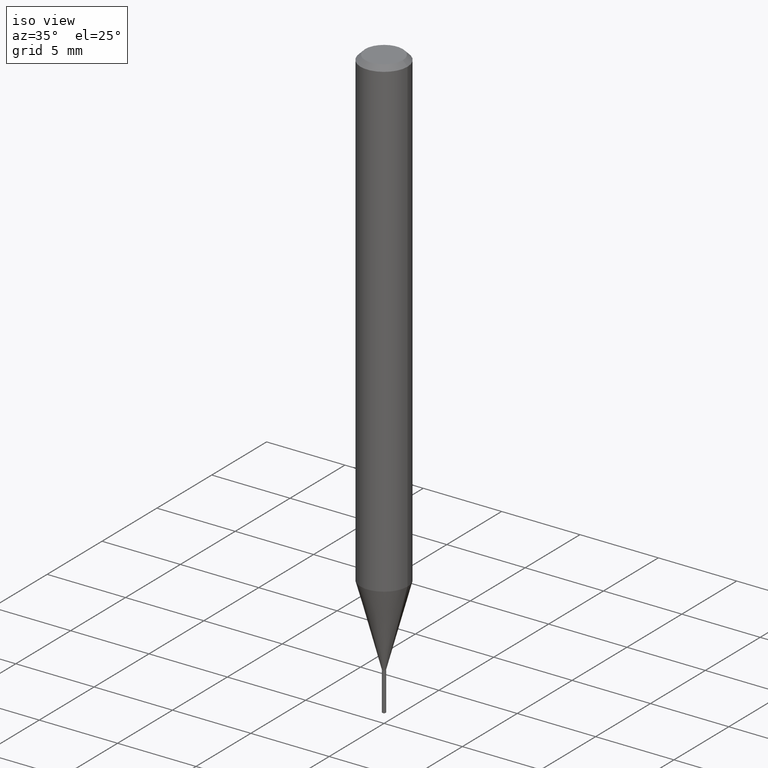
[diagram: clean part render]
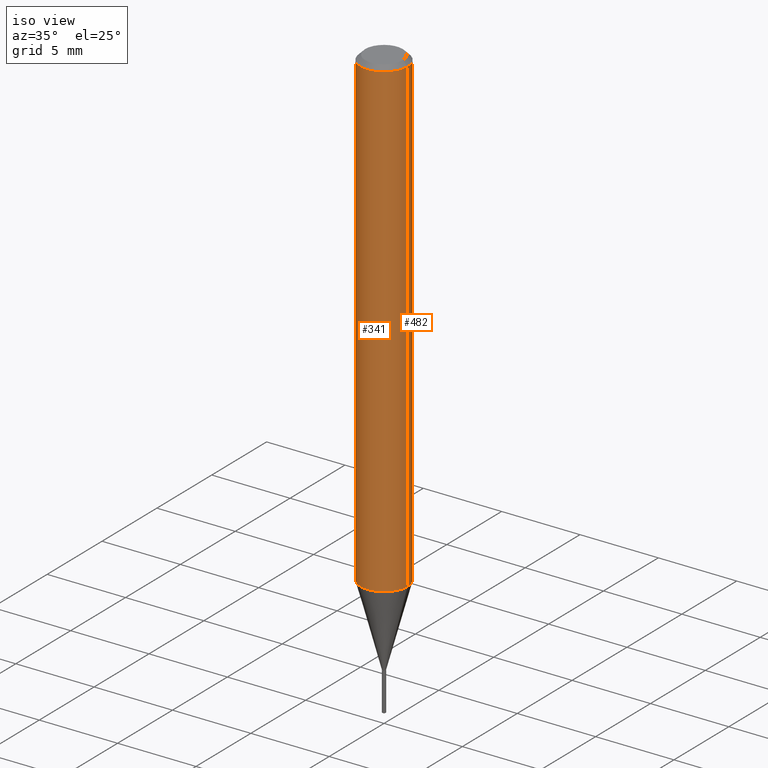
[diagram: same view with one multi-face feature highlighted, each face labeled with its STEP entity id]
A machine part, iso view. The highlighted faces form ONE feature: a constant-radius fillet chain: 2 tangent blend faces with common blend radius 1.4999 mm. The faces share edges in the B-rep.
Their STEP definitions:
[1] entity #482 (Cylinder):
#8 = ORIENTED_EDGE ( 'NONE', *, *, #33, .F. ) ;
#30 = DIRECTION ( 'NONE',  ( -2.445468806185136877E-29, 3.491481338843145188E-15, 1.000000000000000000 ) ) ;
#32 = EDGE_LOOP ( 'NONE', ( #108, #419, #8, #351 ) ) ;
#33 = EDGE_CURVE ( 'NONE', #458, #157, #185, .T. ) ;
#34 = CARTESIAN_POINT ( 'NONE',  ( 0.05905000000000006771, -4.123439461173745257E-16, 2.879382386107503723E-30 ) ) ;
#58 = CARTESIAN_POINT ( 'NONE',  ( 2.888098660104664204E-31, -4.123439461173780263E-17, -0.01181000000000007218 ) ) ;
#105 = LINE ( 'NONE', #376, #273 ) ;
#108 = ORIENTED_EDGE ( 'NONE', *, *, #276, .T. ) ;
#133 = EDGE_CURVE ( 'NONE', #247, #458, #246, .T. ) ;
#134 = AXIS2_PLACEMENT_3D ( 'NONE', #335, #367, #217 ) ;
#157 = VERTEX_POINT ( 'NONE', #411 ) ;
#170 = DIRECTION ( 'NONE',  ( 1.000000000000000000, -6.982962677686266711E-15, 4.876176775795936353E-29 ) ) ;
#184 = DIRECTION ( 'NONE',  ( -2.445468806185136877E-29, 3.491481338843145188E-15, 1.000000000000000000 ) ) ;
#185 = CIRCLE ( 'NONE', #280, 0.05904999999999999832 ) ;
#189 = FACE_OUTER_BOUND ( 'NONE', #32, .T. ) ;
#206 = CYLINDRICAL_SURFACE ( 'NONE', #363, 0.05905000000000006771 ) ;
#217 = DIRECTION ( 'NONE',  ( 1.000000000000000000, -6.982962677686272233E-15, 0.000000000000000000 ) ) ;
#219 = CARTESIAN_POINT ( 'NONE',  ( 0.05905000000000015098, -4.575086387139747161E-15, -1.192256820825982278 ) ) ;
#238 = EDGE_CURVE ( 'NONE', #388, #157, #105, .T. ) ;
#246 = LINE ( 'NONE', #34, #385 ) ;
#247 = VERTEX_POINT ( 'NONE', #219 ) ;
#248 = DIRECTION ( 'NONE',  ( -2.445468806185136597E-29, 3.491481338843145583E-15, 1.000000000000000000 ) ) ;
#254 = DIRECTION ( 'NONE',  ( -2.445468806185136597E-29, 3.491481338843145583E-15, 1.000000000000000000 ) ) ;
#262 = CARTESIAN_POINT ( 'NONE',  ( 0.05904999999999999832, -4.535783407291118600E-16, -0.01181000000000007218 ) ) ;
#273 = VECTOR ( 'NONE', #184, 39.37007874015748143 ) ;
#276 = EDGE_CURVE ( 'NONE', #247, #388, #287, .T. ) ;
#280 = AXIS2_PLACEMENT_3D ( 'NONE', #58, #254, #361 ) ;
#281 = CARTESIAN_POINT ( 'NONE',  ( 0.000000000000000000, 0.000000000000000000, 0.000000000000000000 ) ) ;
#287 = CIRCLE ( 'NONE', #134, 0.05905000000000014404 ) ;
#335 = CARTESIAN_POINT ( 'NONE',  ( 2.915626864291401219E-29, -4.162742441022373029E-15, -1.192256820825982278 ) ) ;
#346 = CARTESIAN_POINT ( 'NONE',  ( -0.05905000000000015098, -3.743166955556031959E-15, -1.192256820825982278 ) ) ;
#351 = ORIENTED_EDGE ( 'NONE', *, *, #133, .F. ) ;
#361 = DIRECTION ( 'NONE',  ( 1.000000000000000000, -6.982962677686266711E-15, 0.000000000000000000 ) ) ;
#363 = AXIS2_PLACEMENT_3D ( 'NONE', #281, #248, #170 ) ;
#367 = DIRECTION ( 'NONE',  ( -2.445468806185136597E-29, 3.491481338843145583E-15, 1.000000000000000000 ) ) ;
#376 = CARTESIAN_POINT ( 'NONE',  ( -0.05905000000000006771, 4.195754854663396409E-16, -2.904631170795525045E-30 ) ) ;
#385 = VECTOR ( 'NONE', #30, 39.37007874015748143 ) ;
#388 = VERTEX_POINT ( 'NONE', #346 ) ;
#411 = CARTESIAN_POINT ( 'NONE',  ( -0.05904999999999999832, -1.682412932350714703E-15, -0.01181000000000007218 ) ) ;
#419 = ORIENTED_EDGE ( 'NONE', *, *, #238, .T. ) ;
#458 = VERTEX_POINT ( 'NONE', #262 ) ;
#482 = ADVANCED_FACE ( 'NONE', ( #189 ), #206, .T. ) ;
[2] entity #341 (Cylinder):
#13 = ORIENTED_EDGE ( 'NONE', *, *, #133, .T. ) ;
#30 = DIRECTION ( 'NONE',  ( -2.445468806185136877E-29, 3.491481338843145188E-15, 1.000000000000000000 ) ) ;
#34 = CARTESIAN_POINT ( 'NONE',  ( 0.05905000000000006771, -4.123439461173745257E-16, 2.879382386107503723E-30 ) ) ;
#45 = DIRECTION ( 'NONE',  ( -2.445468806185136597E-29, 3.491481338843145583E-15, 1.000000000000000000 ) ) ;
#74 = AXIS2_PLACEMENT_3D ( 'NONE', #275, #45, #156 ) ;
#79 = FACE_OUTER_BOUND ( 'NONE', #316, .T. ) ;
#105 = LINE ( 'NONE', #376, #273 ) ;
#113 = DIRECTION ( 'NONE',  ( 1.000000000000000000, -6.982962677686266711E-15, 4.876176775795936353E-29 ) ) ;
#133 = EDGE_CURVE ( 'NONE', #247, #458, #246, .T. ) ;
#155 = EDGE_CURVE ( 'NONE', #157, #458, #344, .T. ) ;
#156 = DIRECTION ( 'NONE',  ( 1.000000000000000000, -6.982962677686272233E-15, 0.000000000000000000 ) ) ;
#157 = VERTEX_POINT ( 'NONE', #411 ) ;
#184 = DIRECTION ( 'NONE',  ( -2.445468806185136877E-29, 3.491481338843145188E-15, 1.000000000000000000 ) ) ;
#201 = AXIS2_PLACEMENT_3D ( 'NONE', #484, #477, #260 ) ;
#219 = CARTESIAN_POINT ( 'NONE',  ( 0.05905000000000015098, -4.575086387139747161E-15, -1.192256820825982278 ) ) ;
#238 = EDGE_CURVE ( 'NONE', #388, #157, #105, .T. ) ;
#246 = LINE ( 'NONE', #34, #385 ) ;
#247 = VERTEX_POINT ( 'NONE', #219 ) ;
#260 = DIRECTION ( 'NONE',  ( 1.000000000000000000, -6.982962677686266711E-15, 0.000000000000000000 ) ) ;
#262 = CARTESIAN_POINT ( 'NONE',  ( 0.05904999999999999832, -4.535783407291118600E-16, -0.01181000000000007218 ) ) ;
#268 = DIRECTION ( 'NONE',  ( -2.445468806185136597E-29, 3.491481338843145583E-15, 1.000000000000000000 ) ) ;
#273 = VECTOR ( 'NONE', #184, 39.37007874015748143 ) ;
#275 = CARTESIAN_POINT ( 'NONE',  ( 2.915626864291401219E-29, -4.162742441022373029E-15, -1.192256820825982278 ) ) ;
#309 = ORIENTED_EDGE ( 'NONE', *, *, #155, .F. ) ;
#316 = EDGE_LOOP ( 'NONE', ( #412, #364, #13, #309 ) ) ;
#332 = CIRCLE ( 'NONE', #74, 0.05905000000000014404 ) ;
#341 = ADVANCED_FACE ( 'NONE', ( #79 ), #384, .T. ) ;
#344 = CIRCLE ( 'NONE', #201, 0.05904999999999999832 ) ;
#346 = CARTESIAN_POINT ( 'NONE',  ( -0.05905000000000015098, -3.743166955556031959E-15, -1.192256820825982278 ) ) ;
#358 = EDGE_CURVE ( 'NONE', #388, #247, #332, .T. ) ;
#364 = ORIENTED_EDGE ( 'NONE', *, *, #358, .T. ) ;
#376 = CARTESIAN_POINT ( 'NONE',  ( -0.05905000000000006771, 4.195754854663396409E-16, -2.904631170795525045E-30 ) ) ;
#384 = CYLINDRICAL_SURFACE ( 'NONE', #454, 0.05905000000000006771 ) ;
#385 = VECTOR ( 'NONE', #30, 39.37007874015748143 ) ;
#388 = VERTEX_POINT ( 'NONE', #346 ) ;
#411 = CARTESIAN_POINT ( 'NONE',  ( -0.05904999999999999832, -1.682412932350714703E-15, -0.01181000000000007218 ) ) ;
#412 = ORIENTED_EDGE ( 'NONE', *, *, #238, .F. ) ;
#420 = CARTESIAN_POINT ( 'NONE',  ( 0.000000000000000000, 0.000000000000000000, 0.000000000000000000 ) ) ;
#454 = AXIS2_PLACEMENT_3D ( 'NONE', #420, #268, #113 ) ;
#458 = VERTEX_POINT ( 'NONE', #262 ) ;
#477 = DIRECTION ( 'NONE',  ( -2.445468806185136597E-29, 3.491481338843145583E-15, 1.000000000000000000 ) ) ;
#484 = CARTESIAN_POINT ( 'NONE',  ( 2.888098660104664204E-31, -4.123439461173780263E-17, -0.01181000000000007218 ) ) ;